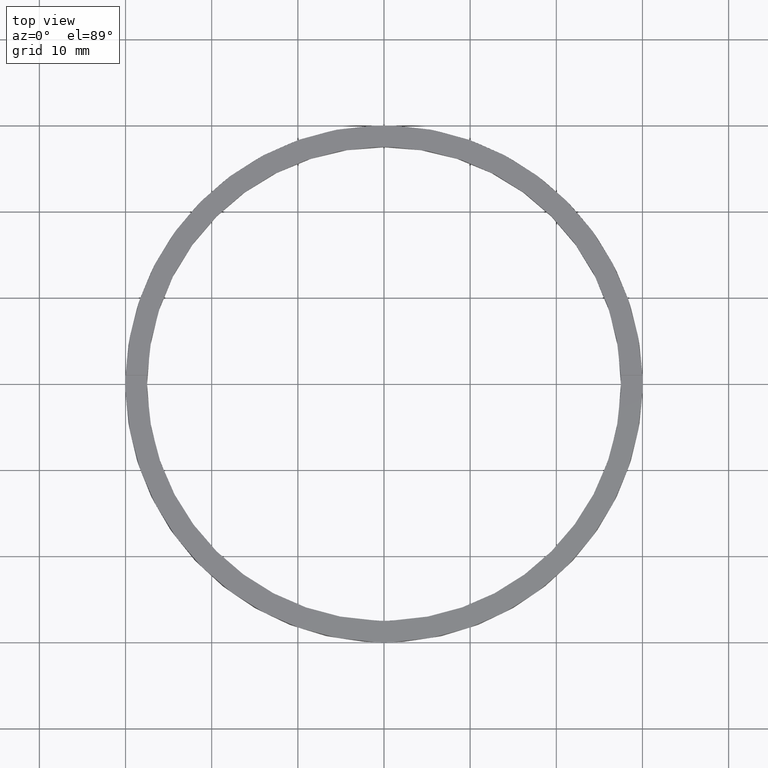
[diagram: clean part render]
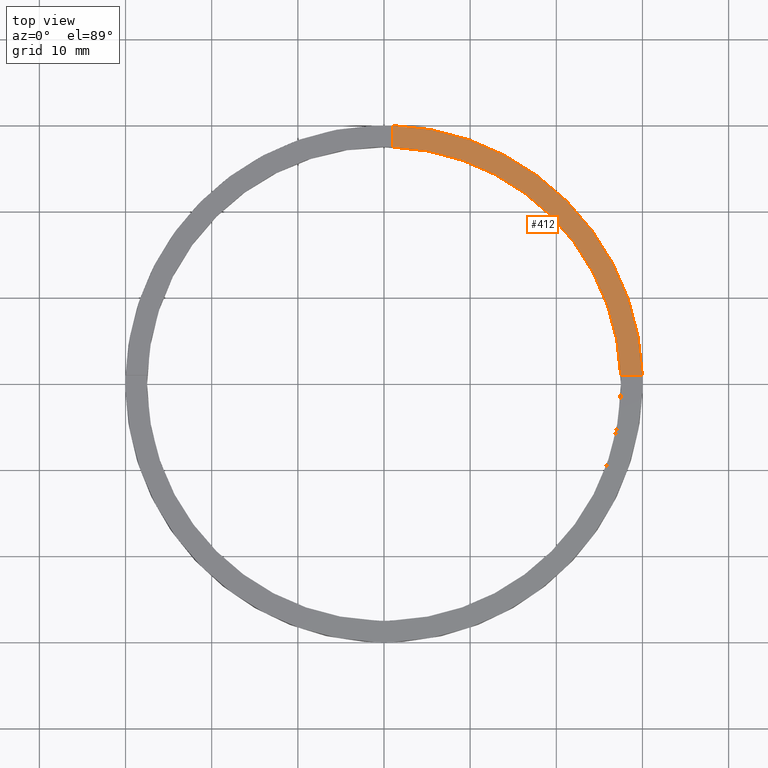
[diagram: same view with one face highlighted and labeled with its STEP entity id]
A machine part, top view. The second image highlights one B-rep face of the part: STEP entity #412.
In plain terms, the highlighted planar face has unit normal (0, 0, 1).
Its self-contained STEP definition (entity closure, byte-faithful):
#11 = DIRECTION ( 'NONE',  ( 0.000000000000000000, 0.000000000000000000, 1.000000000000000000 ) ) ;
#15 = VECTOR ( 'NONE', #375, 1000.000000000000000 ) ;
#19 = CARTESIAN_POINT ( 'NONE',  ( 0.9999999999999729106, 29.98332870112989923, 3.000000000000000000 ) ) ;
#61 = AXIS2_PLACEMENT_3D ( 'NONE', #367, #485, #642 ) ;
#70 = PLANE ( 'NONE',  #61 ) ;
#83 = EDGE_CURVE ( 'NONE', #130, #638, #193, .T. ) ;
#130 = VERTEX_POINT ( 'NONE', #271 ) ;
#137 = CARTESIAN_POINT ( 'NONE',  ( 27.48181216732259458, 0.9999999999998436806, 3.000000000000000000 ) ) ;
#146 = AXIS2_PLACEMENT_3D ( 'NONE', #590, #11, #237 ) ;
#163 = ORIENTED_EDGE ( 'NONE', *, *, #546, .F. ) ;
#188 = ORIENTED_EDGE ( 'NONE', *, *, #465, .F. ) ;
#193 = CIRCLE ( 'NONE', #146, 30.00000000000000000 ) ;
#199 = ORIENTED_EDGE ( 'NONE', *, *, #83, .T. ) ;
#237 = DIRECTION ( 'NONE',  ( 1.000000000000000000, 0.000000000000000000, 0.000000000000000000 ) ) ;
#260 = LINE ( 'NONE', #419, #15 ) ;
#271 = CARTESIAN_POINT ( 'NONE',  ( 29.98332870112990278, 0.9999999999998439026, 3.000000000000000000 ) ) ;
#278 = CARTESIAN_POINT ( 'NONE',  ( 0.9999999999999729106, 27.48181216732259102, 3.000000000000000000 ) ) ;
#299 = EDGE_CURVE ( 'NONE', #602, #738, #359, .T. ) ;
#318 = AXIS2_PLACEMENT_3D ( 'NONE', #751, #575, #585 ) ;
#320 = DIRECTION ( 'NONE',  ( -1.000000000000000000, -6.505213034913025371E-17, -0.000000000000000000 ) ) ;
#359 = CIRCLE ( 'NONE', #318, 27.50000000000000000 ) ;
#367 = CARTESIAN_POINT ( 'NONE',  ( 0.000000000000000000, 0.000000000000000000, 3.000000000000000000 ) ) ;
#375 = DIRECTION ( 'NONE',  ( 2.168404344971008560E-17, 1.000000000000000000, 0.000000000000000000 ) ) ;
#412 = ADVANCED_FACE ( 'NONE', ( #754 ), #70, .T. ) ;
#419 = CARTESIAN_POINT ( 'NONE',  ( 0.9999999999999726885, 19.99999999999999645, 3.000000000000000000 ) ) ;
#465 = EDGE_CURVE ( 'NONE', #130, #602, #506, .T. ) ;
#485 = DIRECTION ( 'NONE',  ( 0.000000000000000000, 0.000000000000000000, 1.000000000000000000 ) ) ;
#506 = LINE ( 'NONE', #557, #537 ) ;
#537 = VECTOR ( 'NONE', #320, 1000.000000000000000 ) ;
#546 = EDGE_CURVE ( 'NONE', #738, #638, #260, .T. ) ;
#557 = CARTESIAN_POINT ( 'NONE',  ( 19.99999999999998934, 0.9999999999998432365, 3.000000000000000000 ) ) ;
#575 = DIRECTION ( 'NONE',  ( 0.000000000000000000, 0.000000000000000000, 1.000000000000000000 ) ) ;
#585 = DIRECTION ( 'NONE',  ( 1.000000000000000000, 0.000000000000000000, 0.000000000000000000 ) ) ;
#590 = CARTESIAN_POINT ( 'NONE',  ( 0.000000000000000000, 0.000000000000000000, 3.000000000000000000 ) ) ;
#602 = VERTEX_POINT ( 'NONE', #137 ) ;
#638 = VERTEX_POINT ( 'NONE', #19 ) ;
#642 = DIRECTION ( 'NONE',  ( 1.000000000000000000, 0.000000000000000000, -0.000000000000000000 ) ) ;
#717 = EDGE_LOOP ( 'NONE', ( #163, #744, #188, #199 ) ) ;
#738 = VERTEX_POINT ( 'NONE', #278 ) ;
#744 = ORIENTED_EDGE ( 'NONE', *, *, #299, .F. ) ;
#751 = CARTESIAN_POINT ( 'NONE',  ( 0.000000000000000000, 0.000000000000000000, 3.000000000000000000 ) ) ;
#754 = FACE_OUTER_BOUND ( 'NONE', #717, .T. ) ;